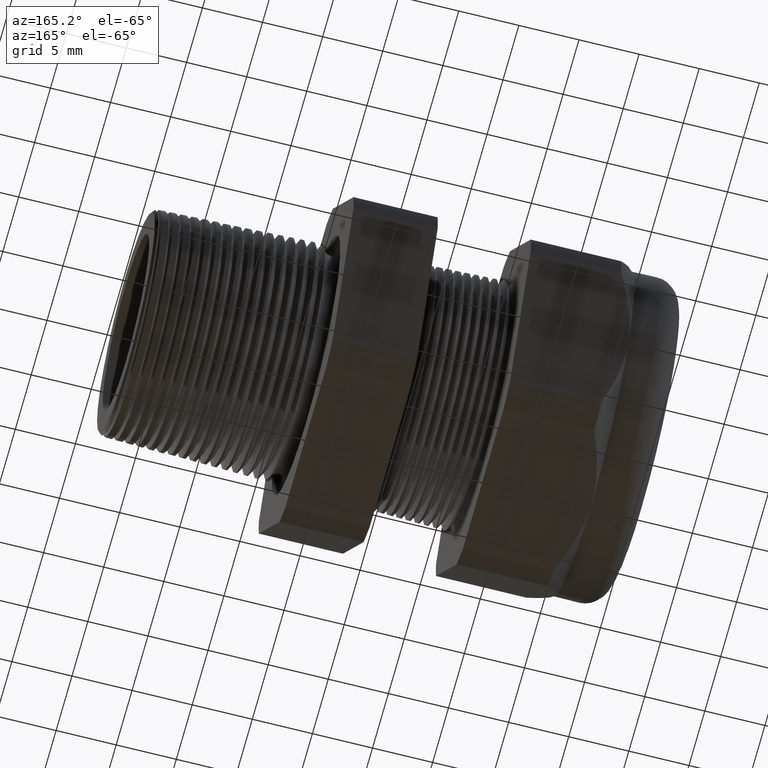
[diagram: clean part render]
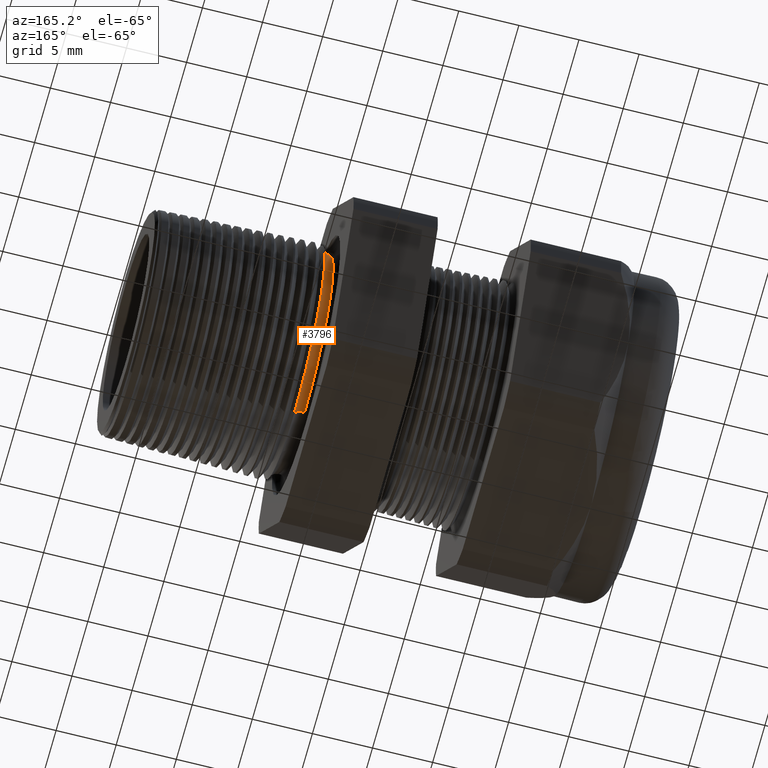
[diagram: same view with one face highlighted and labeled with its STEP entity id]
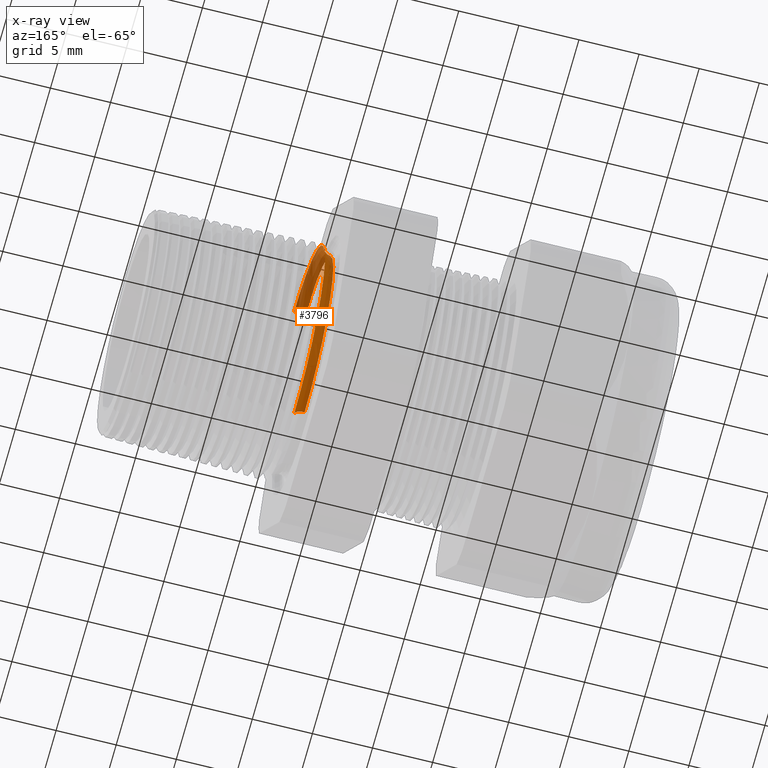
[diagram: x-ray of the same camera — body ghosted, the highlighted face saturated]
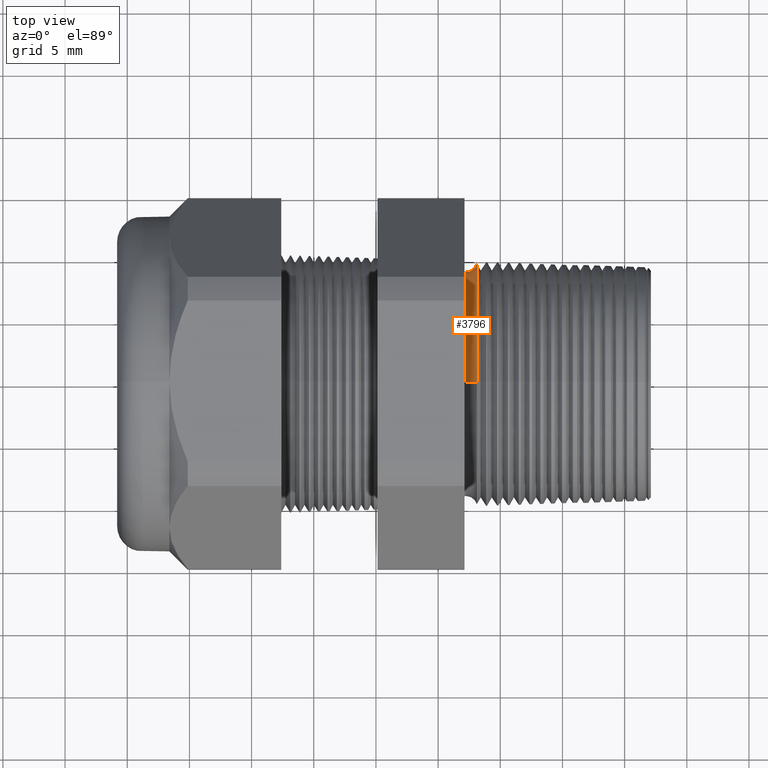
[diagram: same view with one face highlighted and labeled with its STEP entity id]
A machine part, auxiliary view. The second image highlights one B-rep face of the part: STEP entity #3796.
The next image is the same camera in x-ray: the body ghosted, the highlighted face saturated — about 32% of this face is hidden behind the body in this view.
A second angle (top view) of the same face is appended — the face is thin or edge-on in the first view.
In plain terms, the highlighted toroidal blend (fillet) surface has major radius 9.8993 mm and minor (blend) radius 0.889 mm.
Its self-contained STEP definition (entity closure, byte-faithful):
#51 = ORIENTED_EDGE ( 'NONE', *, *, #82, .T. ) ;
#76 = EDGE_CURVE ( 'NONE', #85, #95, #765, .T. ) ;
#82 = EDGE_CURVE ( 'NONE', #85, #4683, #753, .T. ) ;
#83 = ORIENTED_EDGE ( 'NONE', *, *, #76, .F. ) ;
#85 = VERTEX_POINT ( 'NONE', #749 ) ;
#94 = ORIENTED_EDGE ( 'NONE', *, *, #100, .F. ) ;
#95 = VERTEX_POINT ( 'NONE', #809 ) ;
#100 = EDGE_CURVE ( 'NONE', #95, #104, #799, .T. ) ;
#103 = EDGE_CURVE ( 'NONE', #4683, #104, #792, .T. ) ;
#104 = VERTEX_POINT ( 'NONE', #783 ) ;
#749 = CARTESIAN_POINT ( 'NONE',  ( -0.2708719432804220800, 4.677798190858514200E-017, -0.3819712095042733800 ) ) ;
#750 = DIRECTION ( 'NONE',  ( 0.0000000000000000000, 0.0000000000000000000, -1.000000000000000000 ) ) ;
#751 = DIRECTION ( 'NONE',  ( 0.0000000000000000000, -1.000000000000000000, 0.0000000000000000000 ) ) ;
#752 = AXIS2_PLACEMENT_3D ( 'NONE', #758, #751, #750 ) ;
#753 = CIRCLE ( 'NONE', #752, 0.03499999999999996900 ) ;
#758 = CARTESIAN_POINT ( 'NONE',  ( -0.3049999999999999400, 0.0000000000000000000, -0.3897349550272340400 ) ) ;
#761 = DIRECTION ( 'NONE',  ( 0.0000000000000000000, 0.0000000000000000000, 1.000000000000000000 ) ) ;
#762 = DIRECTION ( 'NONE',  ( 1.000000000000000000, 0.0000000000000000000, 0.0000000000000000000 ) ) ;
#763 = CARTESIAN_POINT ( 'NONE',  ( -0.2708719432804220800, 0.0000000000000000000, 0.0000000000000000000 ) ) ;
#764 = AXIS2_PLACEMENT_3D ( 'NONE', #763, #762, #761 ) ;
#765 = CIRCLE ( 'NONE', #764, 0.3819712095042733800 ) ;
#783 = CARTESIAN_POINT ( 'NONE',  ( -0.3049999999999999400, 4.344250272197825000E-017, 0.3547349550272340700 ) ) ;
#784 = DIRECTION ( 'NONE',  ( 0.0000000000000000000, 0.0000000000000000000, -1.000000000000000000 ) ) ;
#785 = DIRECTION ( 'NONE',  ( 1.000000000000000000, 0.0000000000000000000, 0.0000000000000000000 ) ) ;
#786 = CARTESIAN_POINT ( 'NONE',  ( -0.3049999999999999400, 0.0000000000000000000, 0.0000000000000000000 ) ) ;
#787 = AXIS2_PLACEMENT_3D ( 'NONE', #786, #785, #784 ) ;
#792 = CIRCLE ( 'NONE', #787, 0.3547349550272340700 ) ;
#795 = DIRECTION ( 'NONE',  ( 0.0000000000000000000, 1.224646799147352700E-016, 1.000000000000000000 ) ) ;
#796 = DIRECTION ( 'NONE',  ( 0.0000000000000000000, 1.000000000000000000, -1.224646799147353200E-016 ) ) ;
#797 = CARTESIAN_POINT ( 'NONE',  ( -0.3049999999999999400, 4.772876651899397700E-017, 0.3897349550272340400 ) ) ;
#798 = AXIS2_PLACEMENT_3D ( 'NONE', #797, #796, #795 ) ;
#799 = CIRCLE ( 'NONE', #798, 0.03499999999999996900 ) ;
#809 = CARTESIAN_POINT ( 'NONE',  ( -0.2708719432804220800, 0.0000000000000000000, 0.3819712095042733800 ) ) ;
#1997 = CARTESIAN_POINT ( 'NONE',  ( -0.3049999999999999400, 0.0000000000000000000, 0.0000000000000000000 ) ) ;
#1998 = AXIS2_PLACEMENT_3D ( 'NONE', #1997, #2057, #2056 ) ;
#1999 = TOROIDAL_SURFACE ( 'NONE', #1998, 0.3897349550272340400, 0.03499999999999994800 ) ;
#2000 = FACE_OUTER_BOUND ( 'NONE', #3831, .T. ) ;
#2056 = DIRECTION ( 'NONE',  ( 0.0000000000000000000, 0.0000000000000000000, -1.000000000000000000 ) ) ;
#2057 = DIRECTION ( 'NONE',  ( 1.000000000000000000, 0.0000000000000000000, 0.0000000000000000000 ) ) ;
#3728 = CARTESIAN_POINT ( 'NONE',  ( -0.3049999999999999400, 0.0000000000000000000, -0.3547349550272340700 ) ) ;
#3796 = ADVANCED_FACE ( 'NONE', ( #2000 ), #1999, .F. ) ;
#3831 = EDGE_LOOP ( 'NONE', ( #51, #4685, #94, #83 ) ) ;
#4683 = VERTEX_POINT ( 'NONE', #3728 ) ;
#4685 = ORIENTED_EDGE ( 'NONE', *, *, #103, .T. ) ;